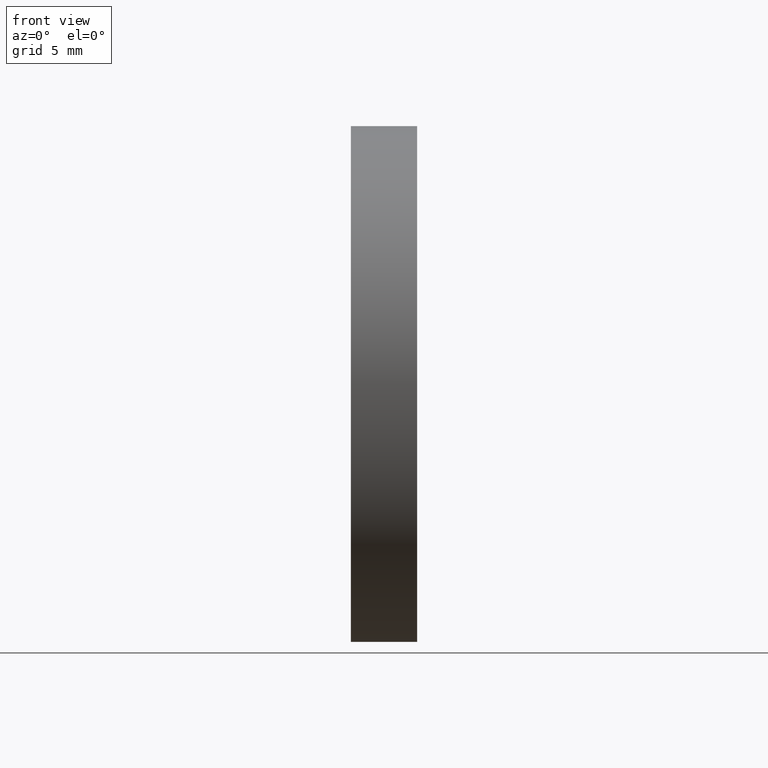
[diagram: clean part render]
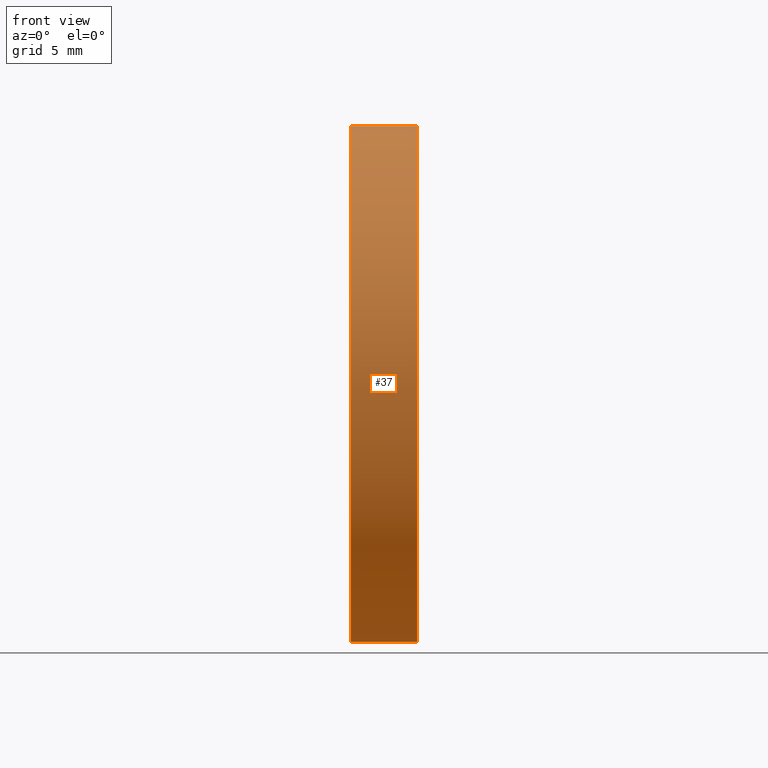
[diagram: same view with one face highlighted and labeled with its STEP entity id]
A machine part, front view. The second image highlights one B-rep face of the part: STEP entity #37.
In plain terms, the highlighted cylindrical surface (partial cylindrical patch) has radius 12.5 mm, axis along (-1, -0, -0).
Its self-contained STEP definition (entity closure, byte-faithful):
#2 = DIRECTION ( 'NONE',  ( -1.000000000000000000, -0.0000000000000000000, -0.0000000000000000000 ) ) ;
#3 = CIRCLE ( 'NONE', #159, 12.49999999999999600 ) ;
#5 = VECTOR ( 'NONE', #2, 1000.000000000000000 ) ;
#6 = CARTESIAN_POINT ( 'NONE',  ( 57.53233705252611700, 32.61076812922678400, 12.49999999999999600 ) ) ;
#23 = EDGE_CURVE ( 'NONE', #34, #131, #112, .T. ) ;
#25 = FACE_OUTER_BOUND ( 'NONE', #134, .T. ) ;
#27 = CARTESIAN_POINT ( 'NONE',  ( 60.74492795786347400, 32.61076812922678400, 12.49999999999999600 ) ) ;
#28 = DIRECTION ( 'NONE',  ( 0.0000000000000000000, 0.0000000000000000000, 1.000000000000000000 ) ) ;
#29 = VERTEX_POINT ( 'NONE', #56 ) ;
#30 = CARTESIAN_POINT ( 'NONE',  ( 56.10091507999716500, 32.61076812922678400, 12.49999999999999600 ) ) ;
#33 = EDGE_CURVE ( 'NONE', #29, #131, #3, .T. ) ;
#34 = VERTEX_POINT ( 'NONE', #27 ) ;
#37 = ADVANCED_FACE ( 'NONE', ( #25 ), #78, .T. ) ;
#44 = DIRECTION ( 'NONE',  ( 0.0000000000000000000, 0.0000000000000000000, 1.000000000000000000 ) ) ;
#45 = EDGE_CURVE ( 'NONE', #93, #29, #129, .T. ) ;
#56 = CARTESIAN_POINT ( 'NONE',  ( 57.53233705252611700, 32.61076812922678400, -12.49999999999999600 ) ) ;
#57 = CARTESIAN_POINT ( 'NONE',  ( 56.10091507999716500, 32.61076812922678400, -12.49999999999999600 ) ) ;
#63 = CIRCLE ( 'NONE', #110, 12.49999999999999600 ) ;
#70 = CARTESIAN_POINT ( 'NONE',  ( 57.53233705252611700, 32.61076812922678400, 0.0000000000000000000 ) ) ;
#78 = CYLINDRICAL_SURFACE ( 'NONE', #166, 12.49999999999999600 ) ;
#82 = ORIENTED_EDGE ( 'NONE', *, *, #94, .T. ) ;
#84 = DIRECTION ( 'NONE',  ( 0.0000000000000000000, 0.0000000000000000000, 1.000000000000000000 ) ) ;
#93 = VERTEX_POINT ( 'NONE', #163 ) ;
#94 = EDGE_CURVE ( 'NONE', #93, #34, #63, .T. ) ;
#96 = DIRECTION ( 'NONE',  ( -1.000000000000000000, -0.0000000000000000000, -0.0000000000000000000 ) ) ;
#103 = ORIENTED_EDGE ( 'NONE', *, *, #23, .T. ) ;
#110 = AXIS2_PLACEMENT_3D ( 'NONE', #150, #135, #84 ) ;
#112 = LINE ( 'NONE', #30, #118 ) ;
#118 = VECTOR ( 'NONE', #96, 1000.000000000000000 ) ;
#123 = DIRECTION ( 'NONE',  ( -1.000000000000000000, -0.0000000000000000000, -0.0000000000000000000 ) ) ;
#129 = LINE ( 'NONE', #57, #5 ) ;
#131 = VERTEX_POINT ( 'NONE', #6 ) ;
#132 = DIRECTION ( 'NONE',  ( -1.000000000000000000, -0.0000000000000000000, -0.0000000000000000000 ) ) ;
#134 = EDGE_LOOP ( 'NONE', ( #156, #82, #103, #165 ) ) ;
#135 = DIRECTION ( 'NONE',  ( -1.000000000000000000, -0.0000000000000000000, -0.0000000000000000000 ) ) ;
#145 = CARTESIAN_POINT ( 'NONE',  ( 56.10091507999716500, 32.61076812922678400, 0.0000000000000000000 ) ) ;
#150 = CARTESIAN_POINT ( 'NONE',  ( 60.74492795786346700, 32.61076812922678400, 0.0000000000000000000 ) ) ;
#156 = ORIENTED_EDGE ( 'NONE', *, *, #45, .F. ) ;
#159 = AXIS2_PLACEMENT_3D ( 'NONE', #70, #132, #44 ) ;
#163 = CARTESIAN_POINT ( 'NONE',  ( 60.74492795786347400, 32.61076812922678400, -12.49999999999999600 ) ) ;
#165 = ORIENTED_EDGE ( 'NONE', *, *, #33, .F. ) ;
#166 = AXIS2_PLACEMENT_3D ( 'NONE', #145, #123, #28 ) ;